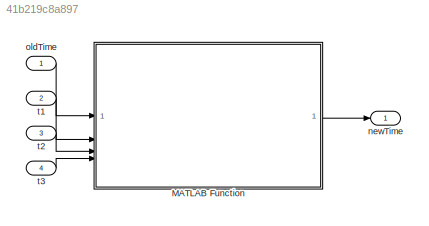
MODEL slx_41b219c8a897
KIND model
CONFIG AbsTol = auto
CONFIG EnableMultiTasking = off
CONFIG FixedStep = auto
CONFIG MaxStep = auto
CONFIG MinStep = auto
CONFIG RelTol = 1e-3
CONFIG SampleTimeConstraint = Unconstrained
CONFIG SolverName = VariableStepAuto
CONFIG StartTime = 0.0
CONFIG StopTime = 10.0
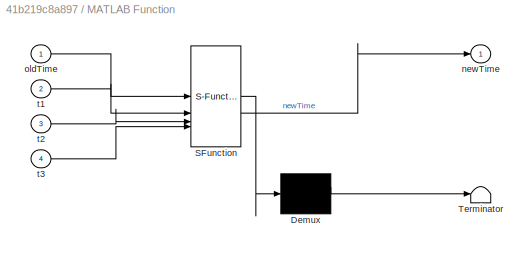
BLOCK [SubSystem] MATLAB Function
  ErrorFcn = Stateflow.Translate.translate
  PermitHierarchicalResolution = ExplicitOnly
  SFBlockType = MATLAB Function
  TreatAsAtomicUnit = on
BLOCK [Demux] MATLAB Function/ Demux 
  Outputs = 1
BLOCK [S-Function] MATLAB Function/ SFunction 
  EnableBusSupport = off
  FunctionName = sf_sfun
  PortCounts = [4 2]
  SFcnIsStateOwnerBlock = off
  SFunctionDeploymentMode = off
  Tag = Stateflow S-Function 2
BLOCK [Terminator] MATLAB Function/ Terminator 
BLOCK [Outport] MATLAB Function/newTime
BLOCK [Inport] MATLAB Function/oldTime
BLOCK [Inport] MATLAB Function/t1
  Port = 2
BLOCK [Inport] MATLAB Function/t2
  Port = 3
BLOCK [Inport] MATLAB Function/t3
  Port = 4
BLOCK [Outport] newTime
BLOCK [Inport] oldTime
BLOCK [Inport] t1
  Port = 2
BLOCK [Inport] t2
  Port = 3
BLOCK [Inport] t3
  Port = 4
LINE MATLAB Function:1 -> newTime:1
LINE oldTime:1 -> MATLAB Function:1
LINE t1:1 -> MATLAB Function:2
LINE t2:1 -> MATLAB Function:3
LINE t3:1 -> MATLAB Function:4
CHART MATLAB Function states=1 transitions=1
  STATE_LABEL 'eML_blk_kernel()'
  STATE_LABEL 'SCRIPT:\nfunction newTime  = Split2(oldTime,t1,t2,t3)\n\nif oldTime == -1\n    newTime = -1\nend\n\nM = [t1 t2 t3];\nnewTime = oldTime + min(M);\nend\n    '
CHART  states=0 transitions=0
